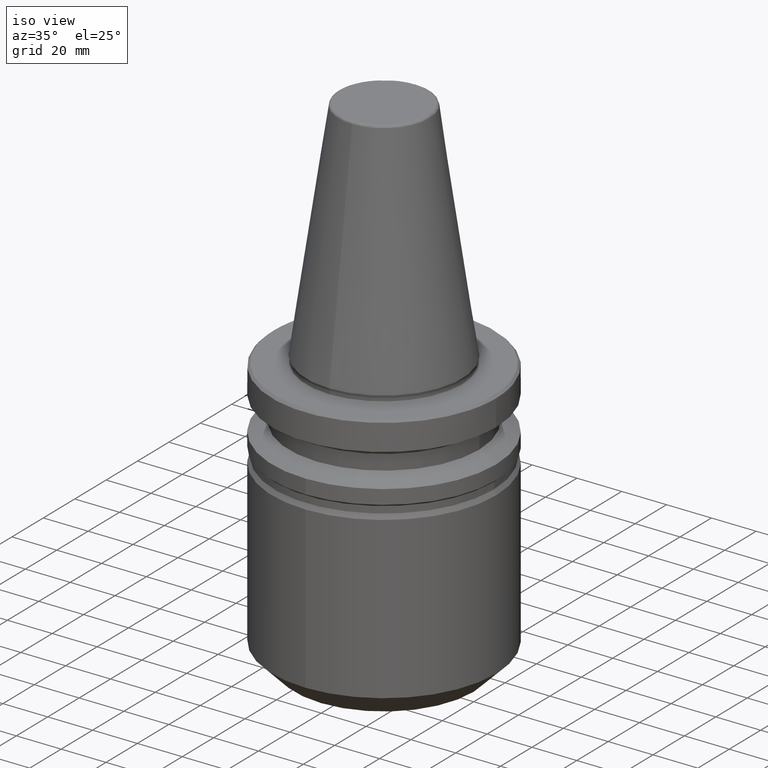
[diagram: clean part render]
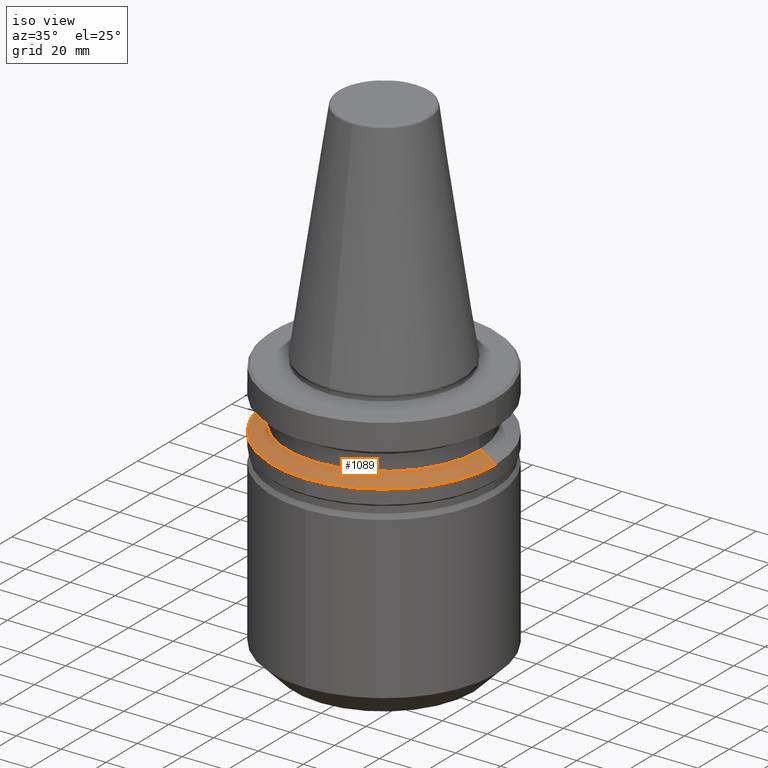
[diagram: same view with one face highlighted and labeled with its STEP entity id]
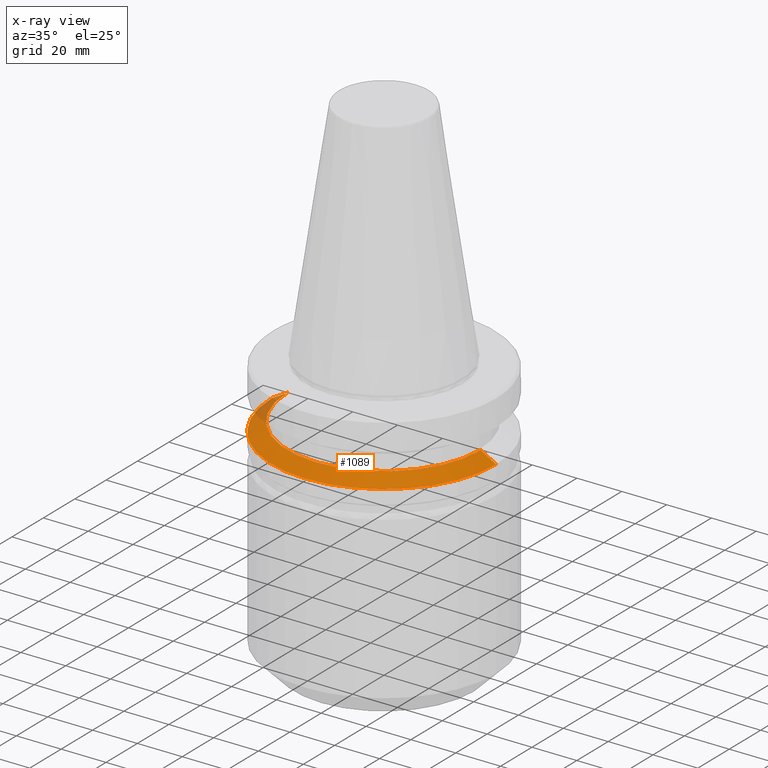
[diagram: x-ray of the same camera — body ghosted, the highlighted face saturated]
A machine part, iso view. The second image highlights one B-rep face of the part: STEP entity #1089.
The next image is the same camera in x-ray: the body ghosted, the highlighted face saturated — about 5% of this face is hidden behind the body in this view.
In plain terms, the highlighted conical surface has half-angle 60 deg.
Its self-contained STEP definition (entity closure, byte-faithful):
#46 = CONICAL_SURFACE ( 'NONE', #873, 50.00000000000003600, 1.047197551196597200 ) ;
#104 = CIRCLE ( 'NONE', #1278, 50.00000000000003600 ) ;
#172 = CARTESIAN_POINT ( 'NONE',  ( 43.10504196136945200, 5.701039581123558100E-015, -26.69999999765321200 ) ) ;
#219 = DIRECTION ( 'NONE',  ( -0.8660254037844383700, 0.0000000000000000000, -0.5000000000000004400 ) ) ;
#220 = CARTESIAN_POINT ( 'NONE',  ( -50.00000000000003600, 0.0000000000000000000, -30.68080587730775800 ) ) ;
#261 = DIRECTION ( 'NONE',  ( -1.000000000000000000, 0.0000000000000000000, 0.0000000000000000000 ) ) ;
#267 = AXIS2_PLACEMENT_3D ( 'NONE', #584, #581, #579 ) ;
#273 = CARTESIAN_POINT ( 'NONE',  ( 0.0000000000000000000, 0.0000000000000000000, -30.68080587730775800 ) ) ;
#286 = ORIENTED_EDGE ( 'NONE', *, *, #1147, .T. ) ;
#318 = CARTESIAN_POINT ( 'NONE',  ( 50.00000000000003600, 6.123233995736770800E-015, -30.68080587730775800 ) ) ;
#320 = ORIENTED_EDGE ( 'NONE', *, *, #437, .F. ) ;
#423 = EDGE_CURVE ( 'NONE', #1188, #1029, #628, .T. ) ;
#437 = EDGE_CURVE ( 'NONE', #516, #1188, #660, .T. ) ;
#516 = VERTEX_POINT ( 'NONE', #767 ) ;
#524 = DIRECTION ( 'NONE',  ( 1.000000000000000000, 0.0000000000000000000, 0.0000000000000000000 ) ) ;
#526 = DIRECTION ( 'NONE',  ( -0.0000000000000000000, -0.0000000000000000000, 1.000000000000000000 ) ) ;
#528 = CARTESIAN_POINT ( 'NONE',  ( 0.0000000000000000000, 0.0000000000000000000, -30.68080587730775800 ) ) ;
#561 = CARTESIAN_POINT ( 'NONE',  ( -50.00000000000003600, 0.0000000000000000000, -30.68080587730775800 ) ) ;
#579 = DIRECTION ( 'NONE',  ( 1.000000000000000000, 0.0000000000000000000, 0.0000000000000000000 ) ) ;
#580 = VECTOR ( 'NONE', #219, 1000.000000000000000 ) ;
#581 = DIRECTION ( 'NONE',  ( -0.0000000000000000000, -0.0000000000000000000, 1.000000000000000000 ) ) ;
#584 = CARTESIAN_POINT ( 'NONE',  ( 0.0000000000000000000, 0.0000000000000000000, -30.68080587730775800 ) ) ;
#603 = CARTESIAN_POINT ( 'NONE',  ( 0.0000000000000000000, -50.00000000000003600, -30.68080587730775800 ) ) ;
#628 = LINE ( 'NONE', #859, #678 ) ;
#660 = CIRCLE ( 'NONE', #1124, 43.10504196136945200 ) ;
#678 = VECTOR ( 'NONE', #854, 1000.000000000000000 ) ;
#718 = VERTEX_POINT ( 'NONE', #603 ) ;
#725 = LINE ( 'NONE', #220, #580 ) ;
#727 = EDGE_CURVE ( 'NONE', #718, #1029, #967, .T. ) ;
#731 = EDGE_LOOP ( 'NONE', ( #890, #320, #286, #998, #740 ) ) ;
#740 = ORIENTED_EDGE ( 'NONE', *, *, #727, .T. ) ;
#767 = CARTESIAN_POINT ( 'NONE',  ( -43.10504196136945200, 0.0000000000000000000, -26.69999999765321200 ) ) ;
#784 = VERTEX_POINT ( 'NONE', #561 ) ;
#812 = EDGE_CURVE ( 'NONE', #784, #718, #104, .T. ) ;
#824 = DIRECTION ( 'NONE',  ( 1.000000000000000000, 0.0000000000000000000, 0.0000000000000000000 ) ) ;
#825 = DIRECTION ( 'NONE',  ( -0.0000000000000000000, -0.0000000000000000000, 1.000000000000000000 ) ) ;
#826 = CARTESIAN_POINT ( 'NONE',  ( 0.0000000000000000000, 0.0000000000000000000, -26.69999999765321200 ) ) ;
#854 = DIRECTION ( 'NONE',  ( 0.8660254037844383700, 1.060575238724906500E-016, -0.5000000000000004400 ) ) ;
#859 = CARTESIAN_POINT ( 'NONE',  ( 50.00000000000003600, 6.123233995736770800E-015, -30.68080587730775800 ) ) ;
#873 = AXIS2_PLACEMENT_3D ( 'NONE', #273, #1086, #261 ) ;
#890 = ORIENTED_EDGE ( 'NONE', *, *, #423, .F. ) ;
#967 = CIRCLE ( 'NONE', #267, 50.00000000000003600 ) ;
#998 = ORIENTED_EDGE ( 'NONE', *, *, #812, .T. ) ;
#1029 = VERTEX_POINT ( 'NONE', #318 ) ;
#1086 = DIRECTION ( 'NONE',  ( 0.0000000000000000000, 0.0000000000000000000, -1.000000000000000000 ) ) ;
#1089 = ADVANCED_FACE ( 'NONE', ( #1321 ), #46, .T. ) ;
#1124 = AXIS2_PLACEMENT_3D ( 'NONE', #826, #825, #824 ) ;
#1147 = EDGE_CURVE ( 'NONE', #516, #784, #725, .T. ) ;
#1188 = VERTEX_POINT ( 'NONE', #172 ) ;
#1278 = AXIS2_PLACEMENT_3D ( 'NONE', #528, #526, #524 ) ;
#1321 = FACE_OUTER_BOUND ( 'NONE', #731, .T. ) ;